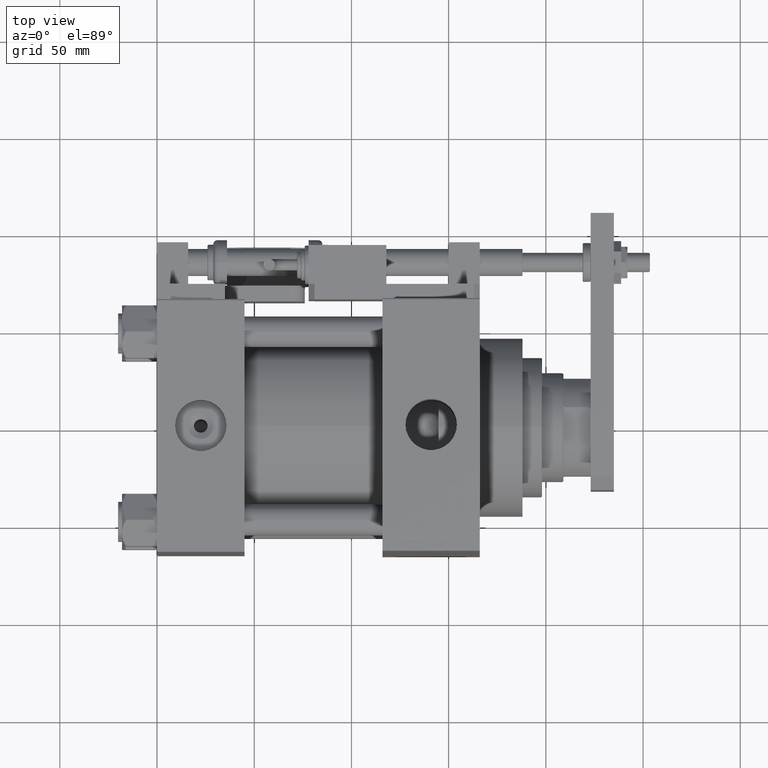
[diagram: clean part render]
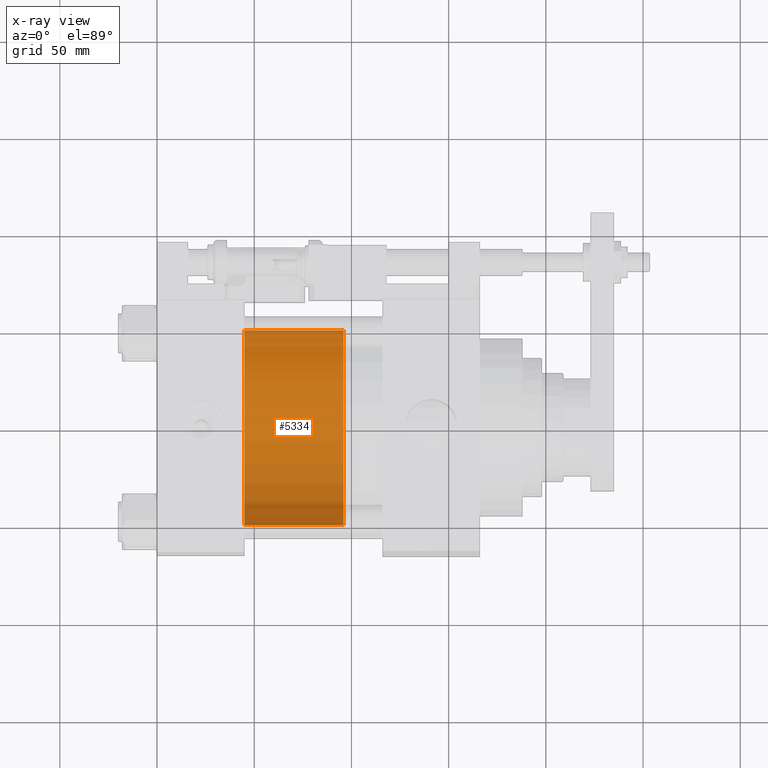
[diagram: x-ray — body ghosted, one internal face saturated and labeled with its STEP entity id]
A machine part, top view, then the same camera in x-ray: the body is ghosted and one INTERNAL B-rep face — a face not visible from any outside direction — is saturated and labeled: STEP entity #5334.
In plain terms, the highlighted cylindrical surface (partial cylindrical patch) has radius 50 mm, axis along (-1, 0, 0).
Its self-contained STEP definition (entity closure, byte-faithful):
#66 = DIRECTION ( 'NONE',  ( -0.000000000000000000, -0.000000000000000000, -1.000000000000000000 ) ) ;
#2431 = AXIS2_PLACEMENT_3D ( 'NONE', #33094, #24703, #45766 ) ;
#2492 = VERTEX_POINT ( 'NONE', #30197 ) ;
#5334 = ADVANCED_FACE ( 'NONE', ( #44975 ), #53086, .T. ) ;
#6198 = EDGE_CURVE ( 'NONE', #19295, #40726, #49937, .T. ) ;
#8035 = EDGE_CURVE ( 'NONE', #19295, #10748, #20360, .T. ) ;
#8470 = CARTESIAN_POINT ( 'NONE',  ( 0.000000000000000000, 0.000000000000000000, 0.000000000000000000 ) ) ;
#10748 = VERTEX_POINT ( 'NONE', #39133 ) ;
#11708 = CARTESIAN_POINT ( 'NONE',  ( 50.00000000000000000, 6.123233995736766085E-15, 51.00000000000000000 ) ) ;
#14556 = AXIS2_PLACEMENT_3D ( 'NONE', #22046, #38012, #30441 ) ;
#15856 = ORIENTED_EDGE ( 'NONE', *, *, #6198, .F. ) ;
#17584 = AXIS2_PLACEMENT_3D ( 'NONE', #8470, #50327, #24952 ) ;
#19043 = ORIENTED_EDGE ( 'NONE', *, *, #28332, .F. ) ;
#19295 = VERTEX_POINT ( 'NONE', #11708 ) ;
#20360 = LINE ( 'NONE', #28749, #30183 ) ;
#22046 = CARTESIAN_POINT ( 'NONE',  ( 0.000000000000000000, 0.000000000000000000, 51.00000000000000000 ) ) ;
#22776 = CARTESIAN_POINT ( 'NONE',  ( -50.00000000000000000, 0.000000000000000000, 51.00000000000000000 ) ) ;
#22960 = EDGE_LOOP ( 'NONE', ( #15856, #53224, #26075, #19043 ) ) ;
#24430 = VECTOR ( 'NONE', #49207, 1000.000000000000000 ) ;
#24703 = DIRECTION ( 'NONE',  ( -0.000000000000000000, -0.000000000000000000, -1.000000000000000000 ) ) ;
#24952 = DIRECTION ( 'NONE',  ( 1.000000000000000000, 0.000000000000000000, 0.000000000000000000 ) ) ;
#26075 = ORIENTED_EDGE ( 'NONE', *, *, #30900, .T. ) ;
#28332 = EDGE_CURVE ( 'NONE', #40726, #2492, #53275, .T. ) ;
#28749 = CARTESIAN_POINT ( 'NONE',  ( 50.00000000000000000, 6.123233995736766085E-15, 51.00000000000000000 ) ) ;
#30183 = VECTOR ( 'NONE', #66, 1000.000000000000000 ) ;
#30197 = CARTESIAN_POINT ( 'NONE',  ( -50.00000000000000000, 0.000000000000000000, 0.000000000000000000 ) ) ;
#30441 = DIRECTION ( 'NONE',  ( 1.000000000000000000, 0.000000000000000000, 0.000000000000000000 ) ) ;
#30900 = EDGE_CURVE ( 'NONE', #10748, #2492, #40894, .T. ) ;
#32756 = CARTESIAN_POINT ( 'NONE',  ( -50.00000000000000000, 0.000000000000000000, 51.00000000000000000 ) ) ;
#33094 = CARTESIAN_POINT ( 'NONE',  ( 0.000000000000000000, 0.000000000000000000, 51.00000000000000000 ) ) ;
#38012 = DIRECTION ( 'NONE',  ( 0.000000000000000000, 0.000000000000000000, 1.000000000000000000 ) ) ;
#39133 = CARTESIAN_POINT ( 'NONE',  ( 50.00000000000000000, 6.123233995736766085E-15, 0.000000000000000000 ) ) ;
#40726 = VERTEX_POINT ( 'NONE', #22776 ) ;
#40894 = CIRCLE ( 'NONE', #17584, 50.00000000000000000 ) ;
#44975 = FACE_OUTER_BOUND ( 'NONE', #22960, .T. ) ;
#45766 = DIRECTION ( 'NONE',  ( -1.000000000000000000, 0.000000000000000000, 0.000000000000000000 ) ) ;
#49207 = DIRECTION ( 'NONE',  ( -0.000000000000000000, -0.000000000000000000, -1.000000000000000000 ) ) ;
#49937 = CIRCLE ( 'NONE', #14556, 50.00000000000000000 ) ;
#50327 = DIRECTION ( 'NONE',  ( 0.000000000000000000, 0.000000000000000000, 1.000000000000000000 ) ) ;
#53086 = CYLINDRICAL_SURFACE ( 'NONE', #2431, 50.00000000000000000 ) ;
#53224 = ORIENTED_EDGE ( 'NONE', *, *, #8035, .T. ) ;
#53275 = LINE ( 'NONE', #32756, #24430 ) ;